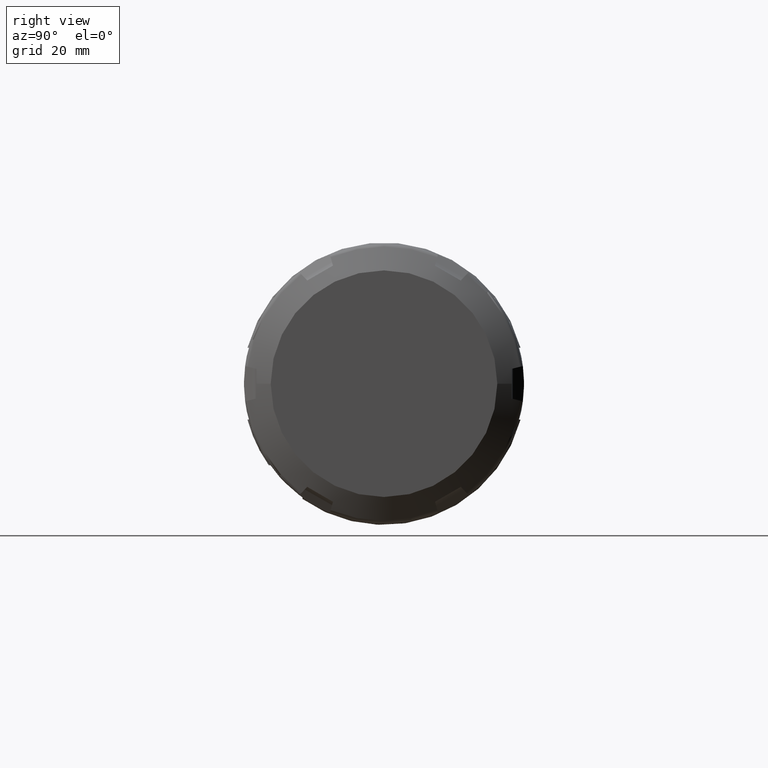
[diagram: clean part render]
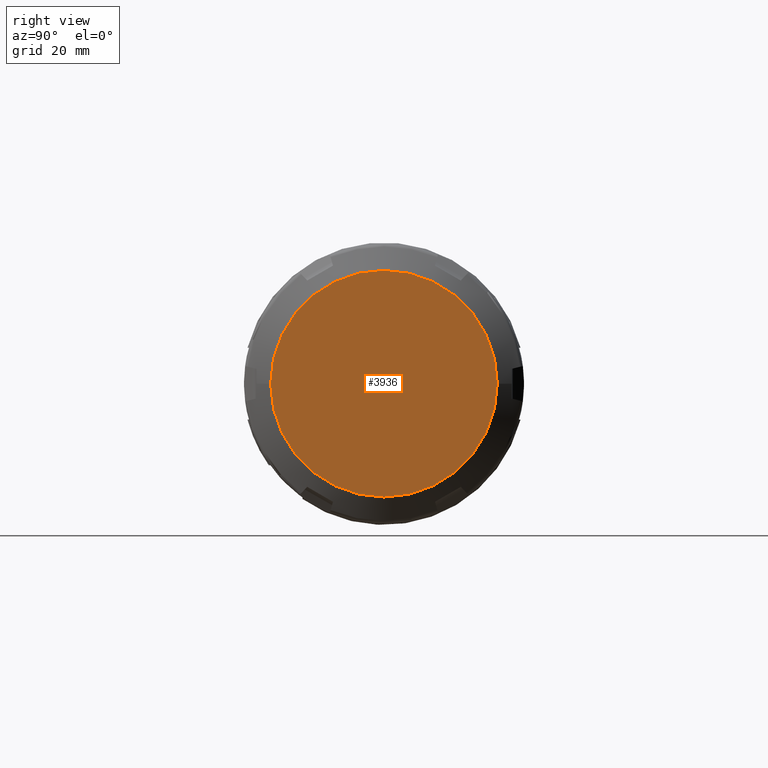
[diagram: same view with one face highlighted and labeled with its STEP entity id]
A machine part, right view. The second image highlights one B-rep face of the part: STEP entity #3936.
In plain terms, the highlighted planar face has unit normal (1, 0, 0).
Its self-contained STEP definition (entity closure, byte-faithful):
#3170=CARTESIAN_POINT('',(2.55E1,0.E0,0.E0));
#3171=DIRECTION('',(-1.E0,0.E0,0.E0));
#3172=DIRECTION('',(0.E0,1.E0,0.E0));
#3173=AXIS2_PLACEMENT_3D('',#3170,#3171,#3172);
#3530=CARTESIAN_POINT('',(2.55E1,0.E0,0.E0));
#3531=DIRECTION('',(1.E0,0.E0,0.E0));
#3532=DIRECTION('',(0.E0,1.E0,0.E0));
#3533=AXIS2_PLACEMENT_3D('',#3530,#3531,#3532);
#3813=CARTESIAN_POINT('',(2.55E1,2.55E1,0.E0));
#3814=CARTESIAN_POINT('',(2.55E1,-2.55E1,0.E0));
#3815=VERTEX_POINT('',#3813);
#3816=VERTEX_POINT('',#3814);
#3925=CARTESIAN_POINT('',(2.55E1,0.E0,0.E0));
#3926=DIRECTION('',(1.E0,0.E0,0.E0));
#3927=DIRECTION('',(0.E0,-1.E0,0.E0));
#3928=AXIS2_PLACEMENT_3D('',#3925,#3926,#3927);
#3929=PLANE('',#3928);
#3931=ORIENTED_EDGE('',*,*,#3930,.T.);
#3933=ORIENTED_EDGE('',*,*,#3932,.F.);
#3934=EDGE_LOOP('',(#3931,#3933));
#3935=FACE_OUTER_BOUND('',#3934,.F.);
#3936=ADVANCED_FACE('',(#3935),#3929,.T.);
#3174=CIRCLE('',#3173,2.55E1);
#3534=CIRCLE('',#3533,2.55E1);
#3930=EDGE_CURVE('',#3815,#3816,#3174,.T.);
#3932=EDGE_CURVE('',#3815,#3816,#3534,.T.);